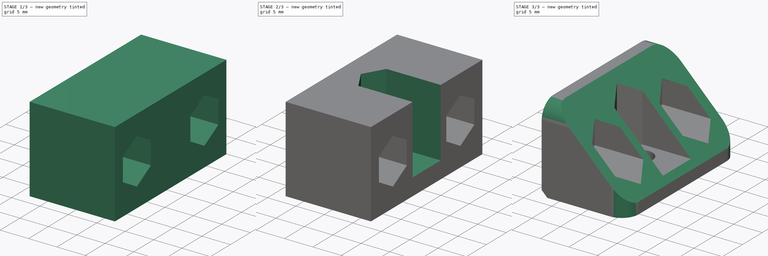
[diagram: build sequence overview — one tinted view per stage of 3, left to right]
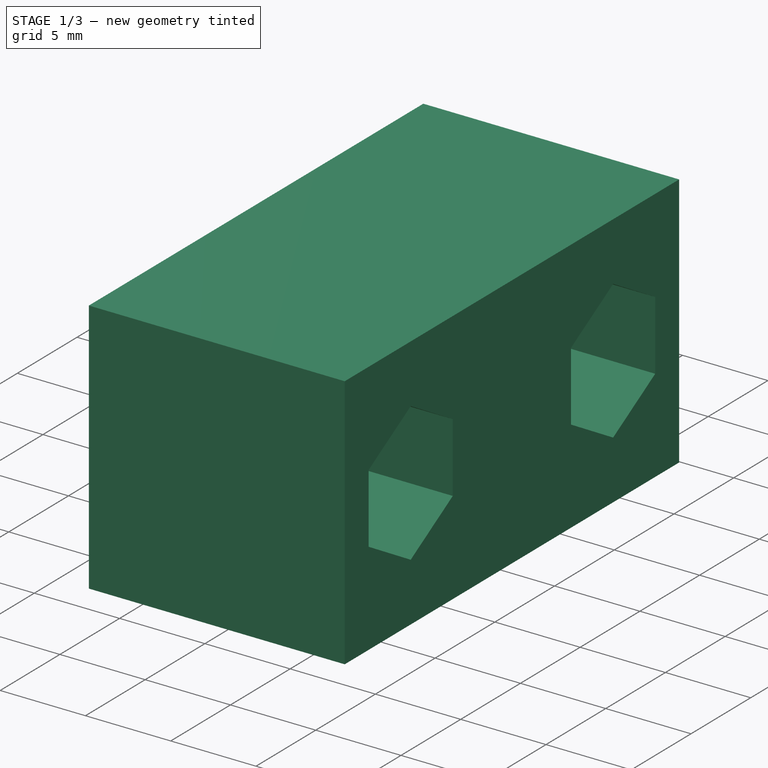
[diagram: stage 1 of 3 — iso view after this stage's code; geometry added in this stage tinted green]
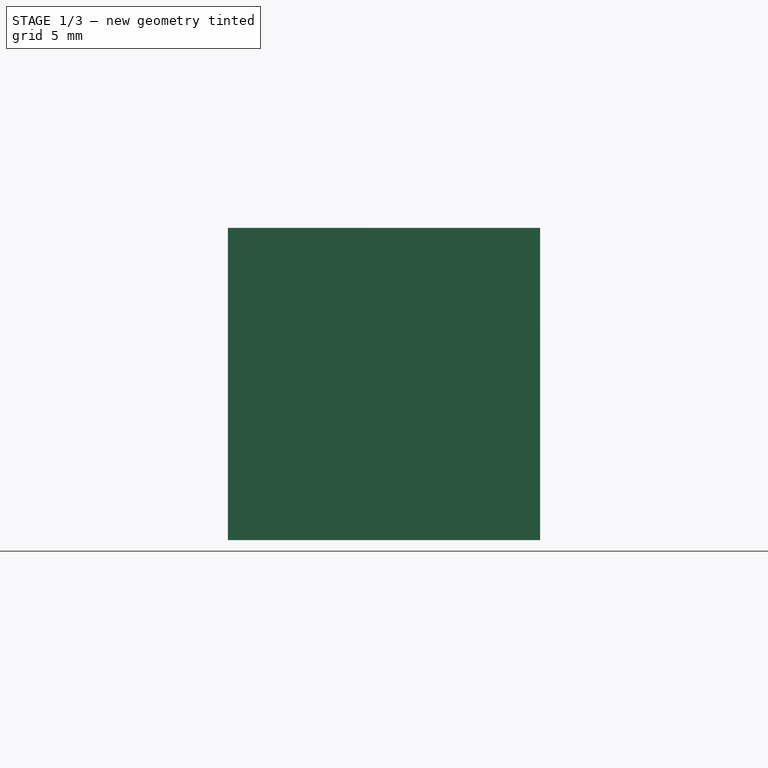
[diagram: stage 1 of 3 — front view after this stage's code; geometry added in this stage tinted green]
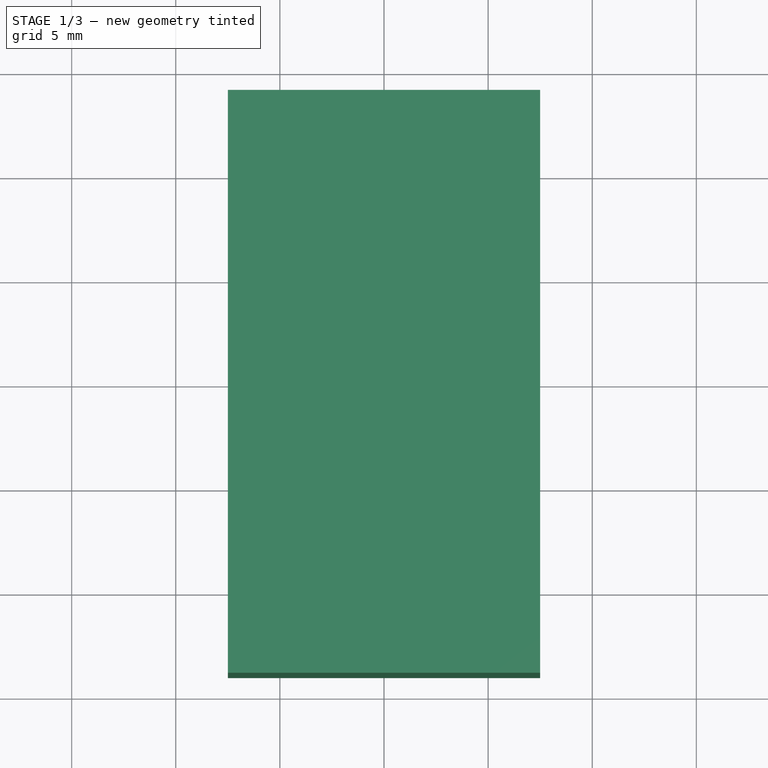
[diagram: stage 1 of 3 — top view after this stage's code; geometry added in this stage tinted green]
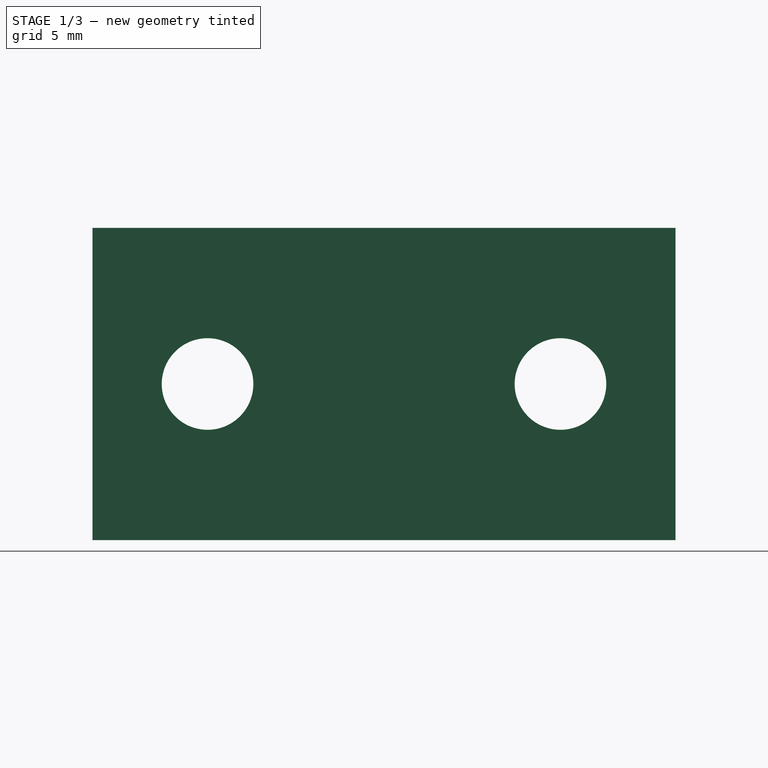
[diagram: stage 1 of 3 — right view after this stage's code; geometry added in this stage tinted green]
FCSTD DOCUMENT  (FreeCAD 0.15R4671 (Git))
Label: Fixing Block v2
License: All rights reserved
LicenseURL: http://en.wikipedia.org/wiki/All_rights_reserved
objects: Sketcher::SketchObject×6, PartDesign::Pocket×5, PartDesign::Pad×1, PartDesign::Fillet×1, PartDesign::Chamfer×1
note: 20 computed .brp shape members not serialized (recipe doc carries the construction recipe); baked Part::Feature solids carry a one-line shape summary decoded from their .brp

FEATURE [Sketcher::SketchObject] Sketch
  sketch-geometry (4):
    g0: LineSegment StartX=-7.5 StartY=14 StartZ=0 EndX=7.5 EndY=14 EndZ=0
    g1: LineSegment StartX=7.5 StartY=14 StartZ=0 EndX=7.5 EndY=-14 EndZ=0
    g2: LineSegment StartX=7.5 StartY=-14 StartZ=0 EndX=-7.5 EndY=-14 EndZ=0
    g3: LineSegment StartX=-7.5 StartY=-14 StartZ=0 EndX=-7.5 EndY=14 EndZ=0
  constraints (12):
    c: Coincident(g0,g1)
    c: Coincident(g1,g2)
    c: Coincident(g2,g3)
    c: Coincident(g3,g0)
    c: Horizontal(g0)
    c: Horizontal(g2)
    c: Vertical(g1)
    c: Vertical(g3)
    c: Symmetric(g0,g2,g-1)
    c: DistanceX(g0) = 15
    c: DistanceY(g1) = -28
    c: Symmetric(g0,g0,g-2)
FEATURE [PartDesign::Pad] Pad
  Length = 15
  Length2 = 100
  Sketch = -> Sketch
  Type = 0
FEATURE [Sketcher::SketchObject] Sketch001
  ExternalGeometry = -> [Pad]
  Placement = pos=(7.5,0,0) rot=(0.57735,0.57735,0.57735;2.0944rad)
  Support = -> Pad [Face2]
  sketch-geometry (16):
    g0: LineSegment [constr] StartX=-8.475 StartY=3.42968 StartZ=0 EndX=-4.95 EndY=5.46484 EndZ=0
    g1: LineSegment [constr] StartX=-4.95 StartY=5.46484 StartZ=0 EndX=-4.95 EndY=9.53516 EndZ=0
    g2: LineSegment [constr] StartX=-4.95 StartY=9.53516 StartZ=0 EndX=-8.475 EndY=11.5703 EndZ=0
    g3: LineSegment [constr] StartX=-8.475 StartY=11.5703 StartZ=0 EndX=-12 EndY=9.53516 EndZ=0
    g4: LineSegment [constr] StartX=-12 StartY=9.53516 StartZ=0 EndX=-12 EndY=5.46484 EndZ=0
    g5: LineSegment [constr] StartX=-12 StartY=5.46484 StartZ=0 EndX=-8.475 EndY=3.42968 EndZ=0
    g6: Circle [constr] CenterX=-8.475 CenterY=7.5 CenterZ=0 NormalX=0 NormalY=0 NormalZ=1 Radius=4.07032
    g7: LineSegment [constr] StartX=8.475 StartY=3.42968 StartZ=0 EndX=12 EndY=5.46484 EndZ=0
    g8: LineSegment [constr] StartX=12 StartY=5.46484 StartZ=0 EndX=12 EndY=9.53516 EndZ=0
    g9: LineSegment [constr] StartX=12 StartY=9.53516 StartZ=0 EndX=8.475 EndY=11.5703 EndZ=0
    g10: LineSegment [constr] StartX=8.475 StartY=11.5703 StartZ=0 EndX=4.95 EndY=9.53516 EndZ=0
    g11: LineSegment [constr] StartX=4.95 StartY=9.53516 StartZ=0 EndX=4.95 EndY=5.46484 EndZ=0
    g12: LineSegment [constr] StartX=4.95 StartY=5.46484 StartZ=0 EndX=8.475 EndY=3.42968 EndZ=0
    g13: Circle [constr] CenterX=8.475 CenterY=7.5 CenterZ=0 NormalX=0 NormalY=0 NormalZ=1 Radius=4.07032
    g14: Circle CenterX=-8.475 CenterY=7.5 CenterZ=0 NormalX=0 NormalY=0 NormalZ=1 Radius=2.2
    g15: Circle CenterX=8.475 CenterY=7.5 CenterZ=0 NormalX=0 NormalY=0 NormalZ=1 Radius=2.2
  constraints (37):
    c: Coincident(g0,g1)
    c: Coincident(g1,g2)
    c: Coincident(g2,g3)
    c: Coincident(g3,g4)
    c: Coincident(g4,g5)
    c: Coincident(g5,g0)
    c: Equal(g0, g1-g5) x5
    c: PointOnObject(g0,g6)
    c: PointOnObject(g1,g6)
    c: PointOnObject(g2,g6)
    c: PointOnObject(g3,g6)
    c: PointOnObject(g4,g6)
    c: PointOnObject(g5,g6)
    c: Vertical(g4)
    c: Coincident(g7,g8)
    c: Coincident(g8,g9)
    c: Coincident(g9,g10)
    c: Coincident(g10,g11)
    c: Coincident(g11,g12)
    c: Coincident(g12,g7)
    c: Equal(g7, g8-g12) x5
    c: PointOnObject(g7,g13)
    c: PointOnObject(g8,g13)
    c: PointOnObject(g9,g13)
    c: PointOnObject(g10,g13)
    c: PointOnObject(g11,g13)
    c: PointOnObject(g12,g13)
    c: Vertical(g11)
    c: Symmetric(g13,g6,g-2)
    c: DistanceX(g4,g-3) = -2
    c: Distance(g0,g4) = 7.05
    c: Equal(g6,g13)
    c: Coincident(g14,g6)
    c: Coincident(g15,g13)
    c: Radius(g15) = 2.2
    c: Equal(g15,g14)
    c: DistanceY(g6,g-3) = 7.5
FEATURE [PartDesign::Pocket] Pocket
  Length = 12
  Sketch = -> Sketch001
  Type = 1
FEATURE [Sketcher::SketchObject] Sketch002
  ExternalGeometry = -> [Pocket]
  Placement = pos=(7.5,0,0) rot=(0.57735,0.57735,0.57735;2.0944rad)
  Support = -> Pocket [Face3]
  sketch-geometry (22):
    g0: LineSegment StartX=-8.475 StartY=3.42968 StartZ=0 EndX=-4.95 EndY=5.46484 EndZ=0
    g1: LineSegment StartX=-4.95 StartY=5.46484 StartZ=0 EndX=-4.95 EndY=9.53516 EndZ=0
    g2: LineSegment StartX=-4.95 StartY=9.53516 StartZ=0 EndX=-8.475 EndY=11.5703 EndZ=0
    g3: LineSegment StartX=-8.475 StartY=11.5703 StartZ=0 EndX=-12 EndY=9.53516 EndZ=0
    g4: LineSegment StartX=-12 StartY=9.53516 StartZ=0 EndX=-12 EndY=5.46484 EndZ=0
    g5: LineSegment StartX=-12 StartY=5.46484 StartZ=0 EndX=-8.475 EndY=3.42968 EndZ=0
    g6: Circle [constr] CenterX=-8.475 CenterY=7.5 CenterZ=0 NormalX=0 NormalY=0 NormalZ=1 Radius=4.07032
    g7: LineSegment StartX=8.475 StartY=3.42968 StartZ=0 EndX=12 EndY=5.46484 EndZ=0
    g8: LineSegment StartX=12 StartY=5.46484 StartZ=0 EndX=12 EndY=9.53516 EndZ=0
    g9: LineSegment StartX=12 StartY=9.53516 StartZ=0 EndX=8.475 EndY=11.5703 EndZ=0
    g10: LineSegment StartX=8.475 StartY=11.5703 StartZ=0 EndX=4.95 EndY=9.53516 EndZ=0
    g11: LineSegment StartX=4.95 StartY=9.53516 StartZ=0 EndX=4.95 EndY=5.46484 EndZ=0
    g12: LineSegment StartX=4.95 StartY=5.46484 StartZ=0 EndX=8.475 EndY=3.42968 EndZ=0
    g13: Circle [constr] CenterX=8.475 CenterY=7.5 CenterZ=0 NormalX=0 NormalY=0 NormalZ=1 Radius=4.07032
    g14: LineSegment [constr] StartX=-12 StartY=9.53516 StartZ=0 EndX=-4.95 EndY=9.53516 EndZ=0
    g15: LineSegment [constr] StartX=-4.95 StartY=9.53516 StartZ=0 EndX=-4.95 EndY=15.0352 EndZ=0
    g16: LineSegment [constr] StartX=-4.95 StartY=15.0352 StartZ=0 EndX=-12 EndY=15.0352 EndZ=0
    g17: LineSegment [constr] StartX=-12 StartY=15.0352 StartZ=0 EndX=-12 EndY=9.53516 EndZ=0
    g18: LineSegment [constr] StartX=4.95 StartY=9.53516 StartZ=0 EndX=12 EndY=9.53516 EndZ=0
    g19: LineSegment [constr] StartX=12 StartY=9.53516 StartZ=0 EndX=12 EndY=15.0352 EndZ=0
    g20: LineSegment [constr] StartX=12 StartY=15.0352 StartZ=0 EndX=4.95 EndY=15.0352 EndZ=0
    g21: LineSegment [constr] StartX=4.95 StartY=15.0352 StartZ=0 EndX=4.95 EndY=9.53516 EndZ=0
  constraints (54):
    c: Coincident(g0,g1)
    c: Coincident(g1,g2)
    c: Coincident(g2,g3)
    c: Coincident(g3,g4)
    c: Coincident(g4,g5)
    c: Coincident(g5,g0)
    c: Equal(g0, g1-g5) x5
    c: PointOnObject(g0,g6)
    c: PointOnObject(g1,g6)
    c: PointOnObject(g2,g6)
    c: PointOnObject(g3,g6)
    c: PointOnObject(g4,g6)
    c: PointOnObject(g5,g6)
    c: Vertical(g4)
    c: Coincident(g7,g8)
    c: Coincident(g8,g9)
    c: Coincident(g9,g10)
    c: Coincident(g10,g11)
    c: Coincident(g11,g12)
    c: Coincident(g12,g7)
    c: Equal(g7, g8-g12) x5
    c: PointOnObject(g7,g13)
    c: PointOnObject(g8,g13)
    c: PointOnObject(g9,g13)
    c: PointOnObject(g10,g13)
    c: PointOnObject(g11,g13)
    c: PointOnObject(g12,g13)
    c: Equal(g13,g6)
    c: Distance(g11,g7) = 7.05
    c: Vertical(g8)
    c: Coincident(g13,g-4)
    c: Coincident(g6,g-3)
    c: Coincident(g14,g15)
    c: Coincident(g15,g16)
    c: Coincident(g16,g17)
    c: Coincident(g17,g14)
    c: Horizontal(g14)
    c: Horizontal(g16)
    c: Vertical(g15)
    c: Vertical(g17)
    c: Coincident(g14,g3)
    c: Coincident(g14,g1)
    c: Coincident(g18,g19)
    c: Coincident(g19,g20)
    c: Coincident(g20,g21)
    c: Coincident(g21,g18)
    c: Horizontal(g18)
    c: Horizontal(g20)
    c: Vertical(g19)
    c: Vertical(g21)
    c: Coincident(g18,g10)
    c: Coincident(g8,g18)
    c: Equal(g15,g21)
    c: DistanceY(g19) = 5.5
FEATURE [PartDesign::Pocket] Pocket001
  Length = 12
  Sketch = -> Sketch002
  Type = 0
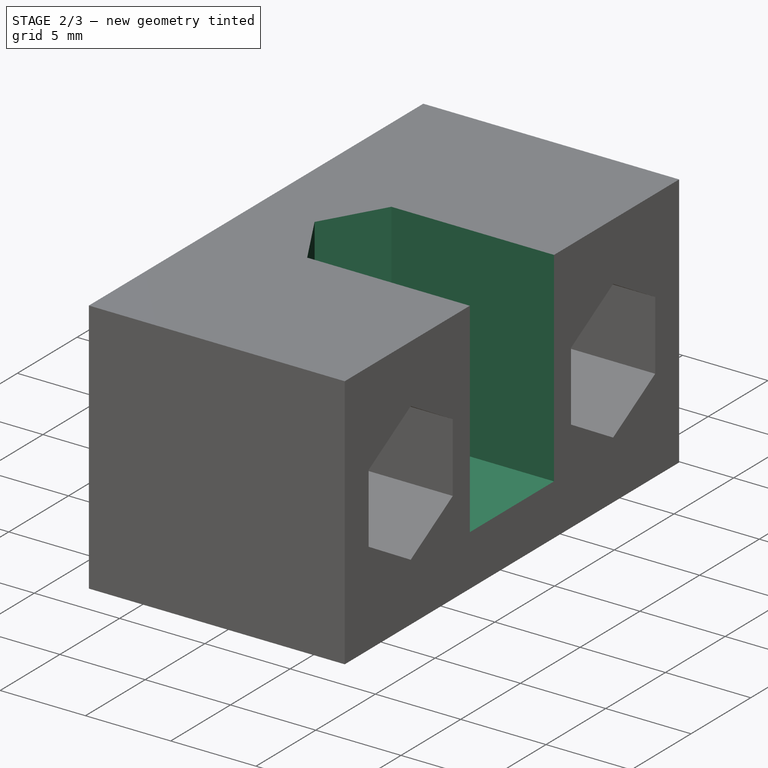
[diagram: stage 2 of 3 — iso view after this stage's code; geometry added in this stage tinted green]
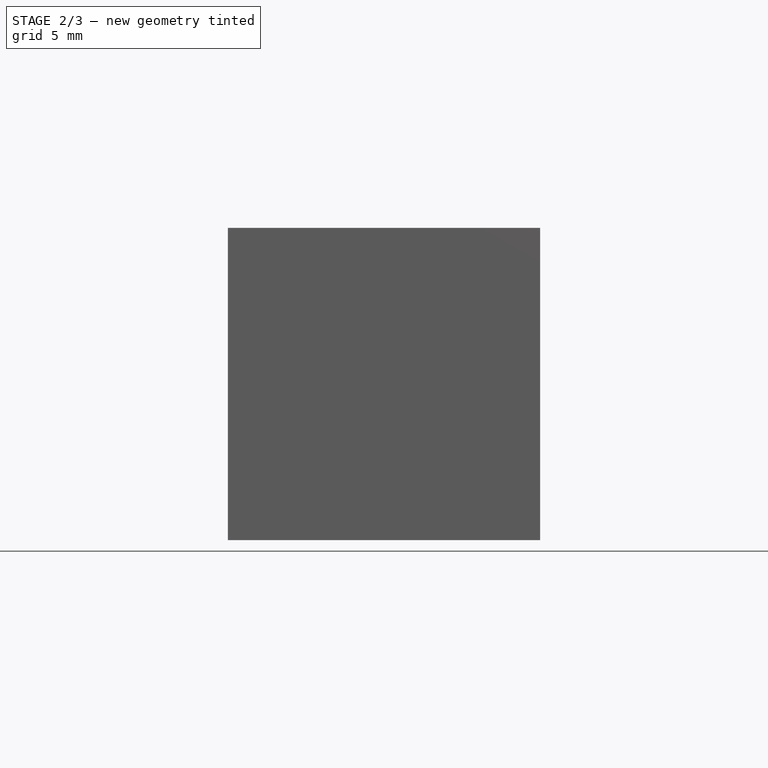
[diagram: stage 2 of 3 — front view after this stage's code; geometry added in this stage tinted green]
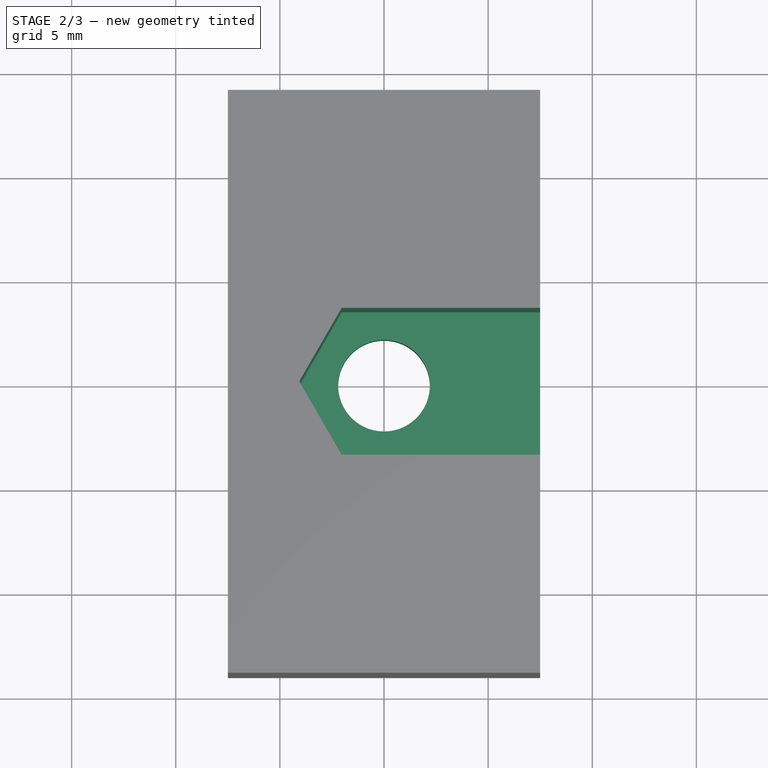
[diagram: stage 2 of 3 — top view after this stage's code; geometry added in this stage tinted green]
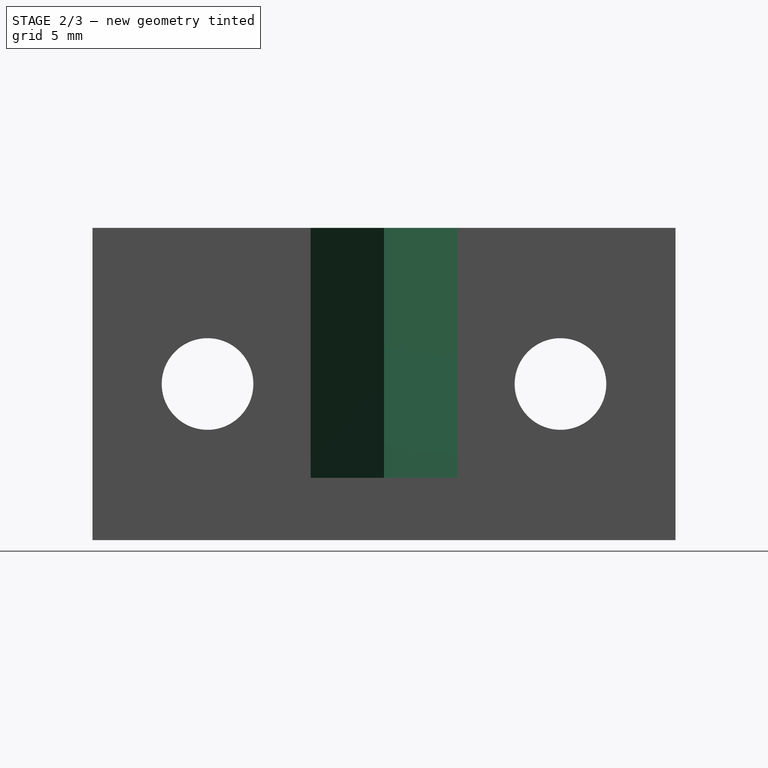
[diagram: stage 2 of 3 — right view after this stage's code; geometry added in this stage tinted green]
FEATURE [Sketcher::SketchObject] Sketch003
  Placement = pos=(0,0,15) rot=(0,0,1;0rad)
  Support = -> Pocket001 [Face5]
  sketch-geometry (1):
    g0: Circle CenterX=0 CenterY=0 CenterZ=0 NormalX=0 NormalY=0 NormalZ=1 Radius=2.2
  constraints (2):
    c: Radius(g0) = 2.2
    c: Coincident(g0,g-1)
FEATURE [PartDesign::Pocket] Pocket002
  Length = 5
  Sketch = -> Sketch003
  Type = 1
FEATURE [Sketcher::SketchObject] Sketch004
  ExternalGeometry = -> [Pocket002]
  Placement = pos=(0,0,15) rot=(0,0,1;0rad)
  Support = -> Pocket002 [Face5]
  sketch-geometry (11):
    g0: LineSegment [constr] StartX=4.07032 StartY=0 StartZ=0 EndX=2.03516 EndY=3.525 EndZ=0
    g1: LineSegment StartX=2.03516 StartY=3.525 StartZ=0 EndX=-2.03516 EndY=3.525 EndZ=0
    g2: LineSegment StartX=-2.03516 StartY=3.525 StartZ=0 EndX=-4.07032 EndY=0 EndZ=0
    g3: LineSegment StartX=-4.07032 StartY=0 StartZ=0 EndX=-2.03516 EndY=-3.525 EndZ=0
    g4: LineSegment StartX=-2.03516 StartY=-3.525 StartZ=0 EndX=2.03516 EndY=-3.525 EndZ=0
    g5: LineSegment [constr] StartX=2.03516 StartY=-3.525 StartZ=0 EndX=4.07032 EndY=0 EndZ=0
    g6: Circle [constr] CenterX=0 CenterY=0 CenterZ=0 NormalX=0 NormalY=0 NormalZ=1 Radius=4.07032
    g7: LineSegment StartX=2.03516 StartY=-3.525 StartZ=0 EndX=7.53516 EndY=-3.525 EndZ=0
    g8: LineSegment StartX=7.53516 StartY=-3.525 StartZ=0 EndX=7.53516 EndY=3.525 EndZ=0
    g9: LineSegment StartX=7.53516 StartY=3.525 StartZ=0 EndX=2.03516 EndY=3.525 EndZ=0
    g10: LineSegment [constr] StartX=2.03516 StartY=3.525 StartZ=0 EndX=2.03516 EndY=-3.525 EndZ=0
  constraints (27):
    c: Coincident(g0,g1)
    c: Coincident(g1,g2)
    c: Coincident(g2,g3)
    c: Coincident(g3,g4)
    c: Coincident(g4,g5)
    c: Coincident(g5,g0)
    c: Equal(g0, g1-g5) x5
    c: PointOnObject(g0,g6)
    c: PointOnObject(g1,g6)
    c: PointOnObject(g2,g6)
    c: PointOnObject(g3,g6)
    c: PointOnObject(g4,g6)
    c: PointOnObject(g5,g6)
    c: Horizontal(g4)
    c: Distance(g0,g4) = 7.05
    c: Coincident(g6,g-1)
    c: Coincident(g7,g8)
    c: Coincident(g8,g9)
    c: Coincident(g9,g10)
    c: Coincident(g10,g7)
    c: Horizontal(g7)
    c: Horizontal(g9)
    c: Vertical(g8)
    c: Vertical(g10)
    c: Coincident(g7,g4)
    c: Coincident(g0,g9)
    c: DistanceX(g7) = 5.5
FEATURE [PartDesign::Pocket] Pocket003
  Length = 12
  Sketch = -> Sketch004
  Type = 0
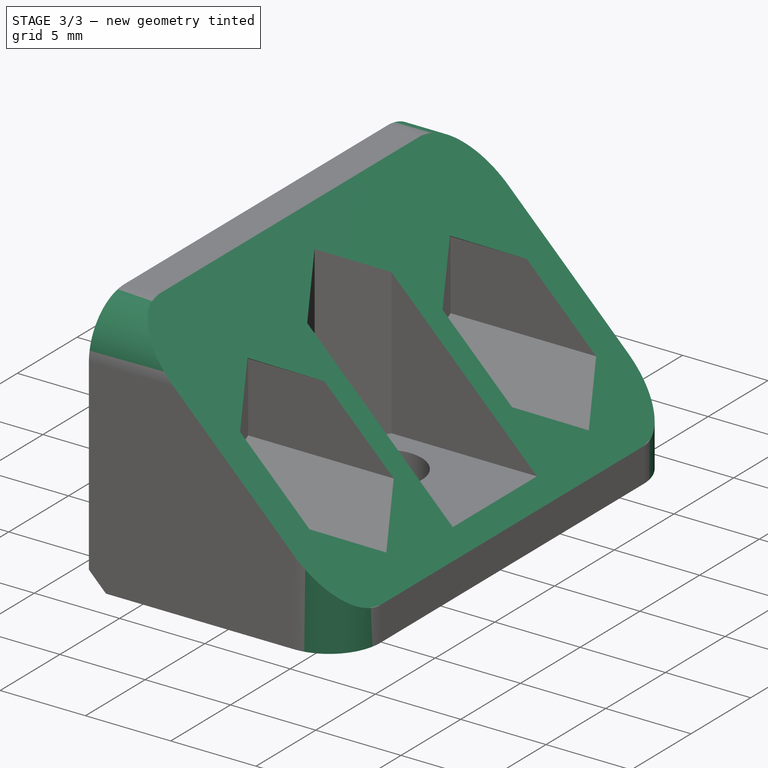
[diagram: stage 3 of 3 — iso view after this stage's code; geometry added in this stage tinted green]
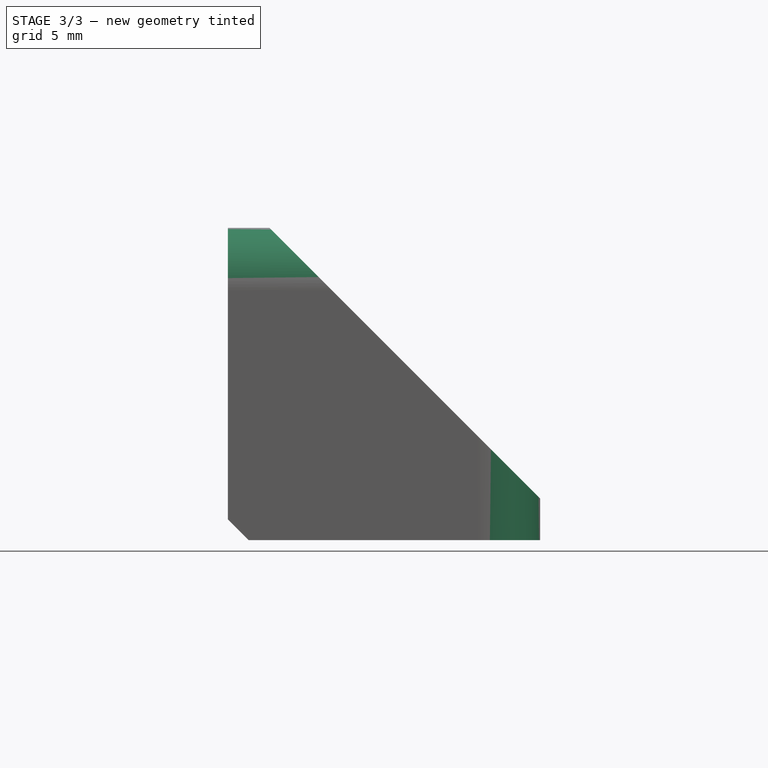
[diagram: stage 3 of 3 — front view after this stage's code; geometry added in this stage tinted green]
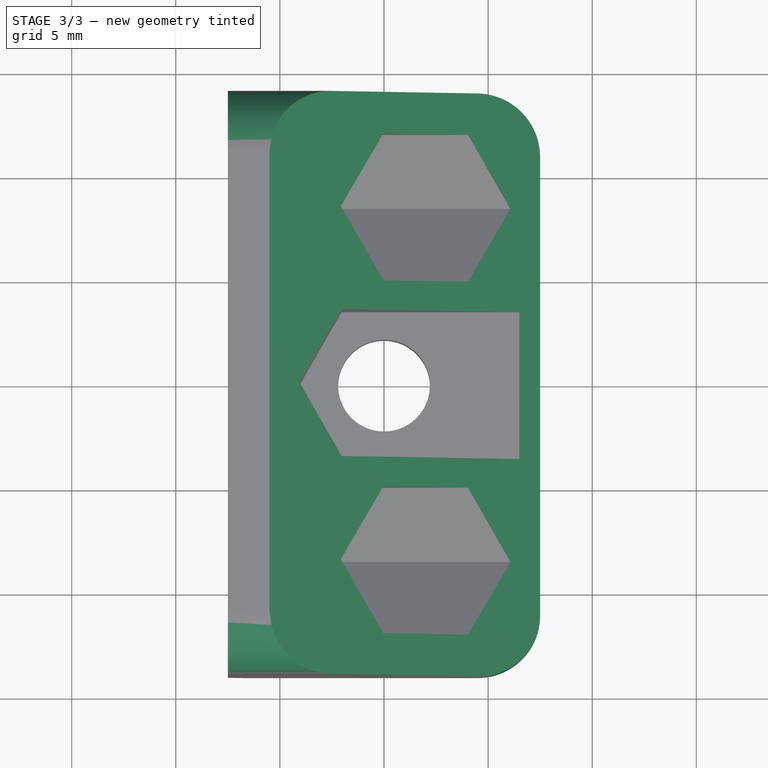
[diagram: stage 3 of 3 — top view after this stage's code; geometry added in this stage tinted green]
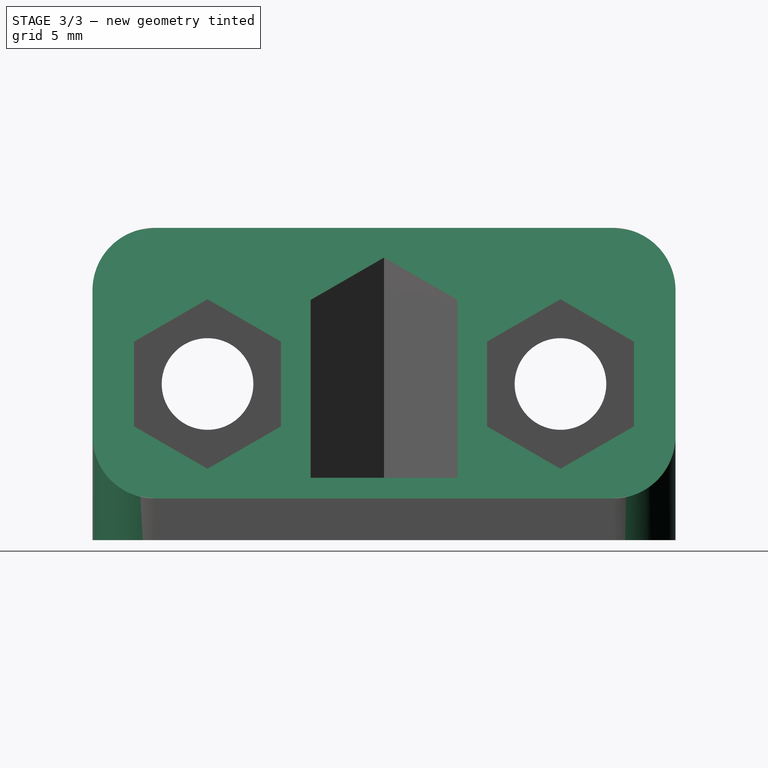
[diagram: stage 3 of 3 — right view after this stage's code; geometry added in this stage tinted green]
FEATURE [Sketcher::SketchObject] Sketch005
  ExternalGeometry = -> [Pocket003]
  Placement = pos=(0,-14,0) rot=(1,0,0;1.5708rad)
  Support = -> Pocket003 [Face6]
  sketch-geometry (3):
    g0: LineSegment StartX=7.5 StartY=15 StartZ=0 EndX=7.5 EndY=2 EndZ=0
    g1: LineSegment StartX=7.5 StartY=2 StartZ=0 EndX=-5.5 EndY=15 EndZ=0
    g2: LineSegment StartX=-5.5 StartY=15 StartZ=0 EndX=7.5 EndY=15 EndZ=0
  constraints (8):
    c: Coincident(g-3,g0)
    c: Coincident(g0,g1)
    c: Coincident(g1,g2)
    c: Coincident(g2,g0)
    c: Horizontal(g2)
    c: Equal(g2,g0)
    c: PointOnObject(g0,g-3)
    c: DistanceY(g-3,g0) = 2
FEATURE [PartDesign::Pocket] Pocket004
  Length = 5
  Sketch = -> Sketch005
  Type = 1
FEATURE [PartDesign::Fillet] Fillet
  Base = -> Pocket004 [Edge2,Edge10,Edge33,Edge4]
  Radius = 3
FEATURE [PartDesign::Chamfer] Chamfer
  Base = -> Fillet [Edge7]
  Size = 1
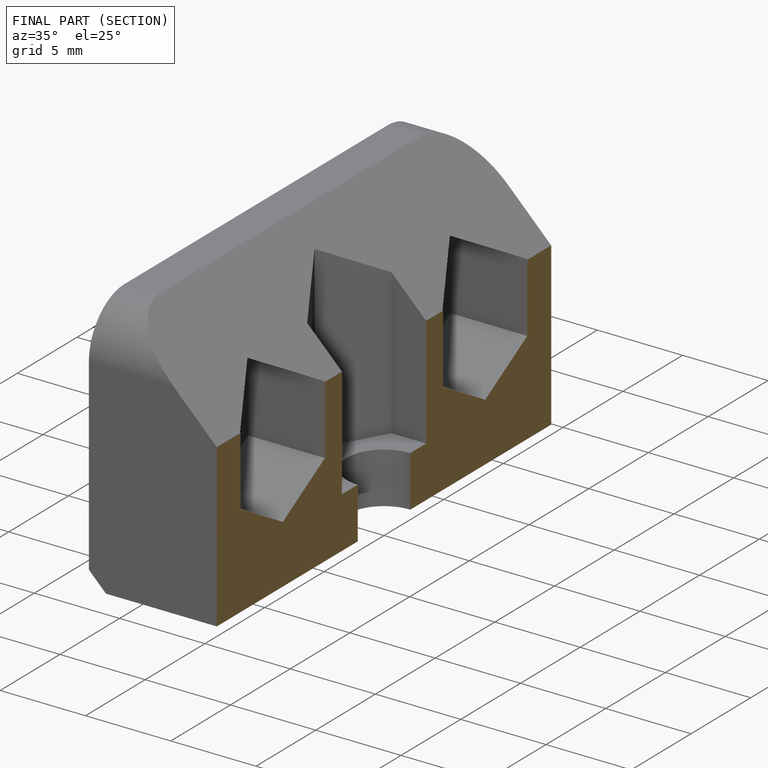
[diagram: finished part — half-section view (interior)]
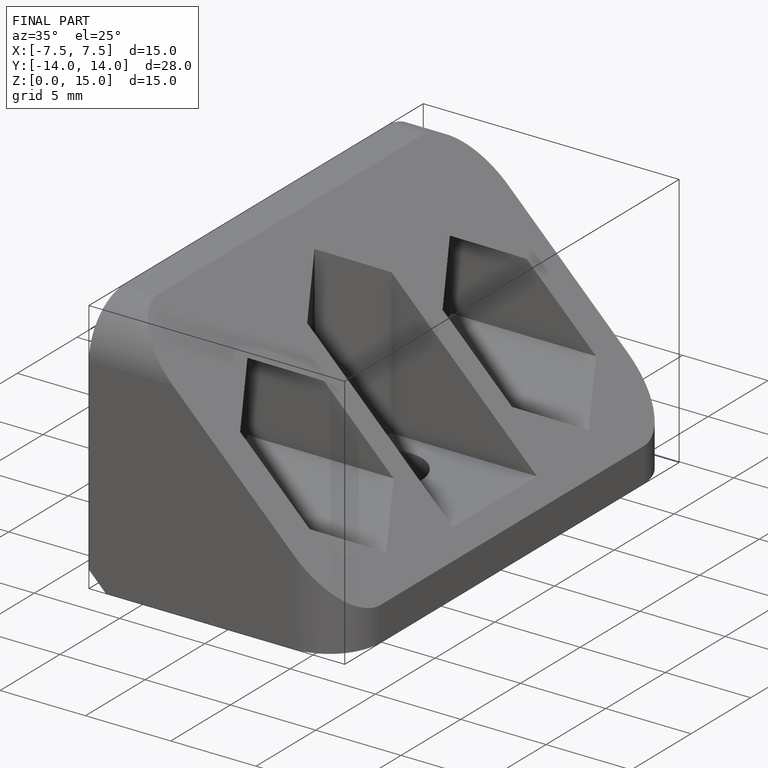
[diagram: finished part — iso view with bounding-box wireframe]
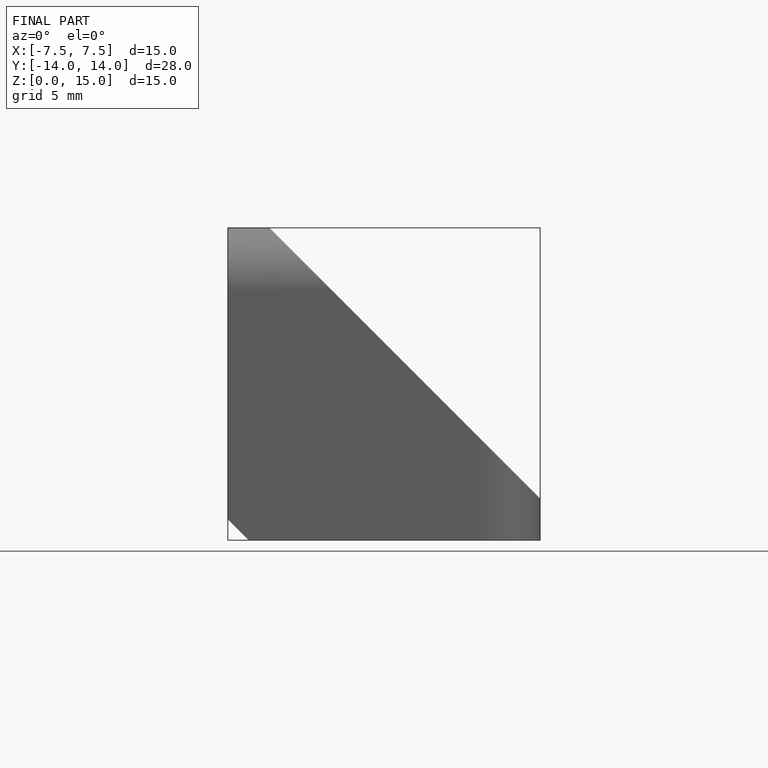
[diagram: finished part — front view with bounding-box wireframe]
